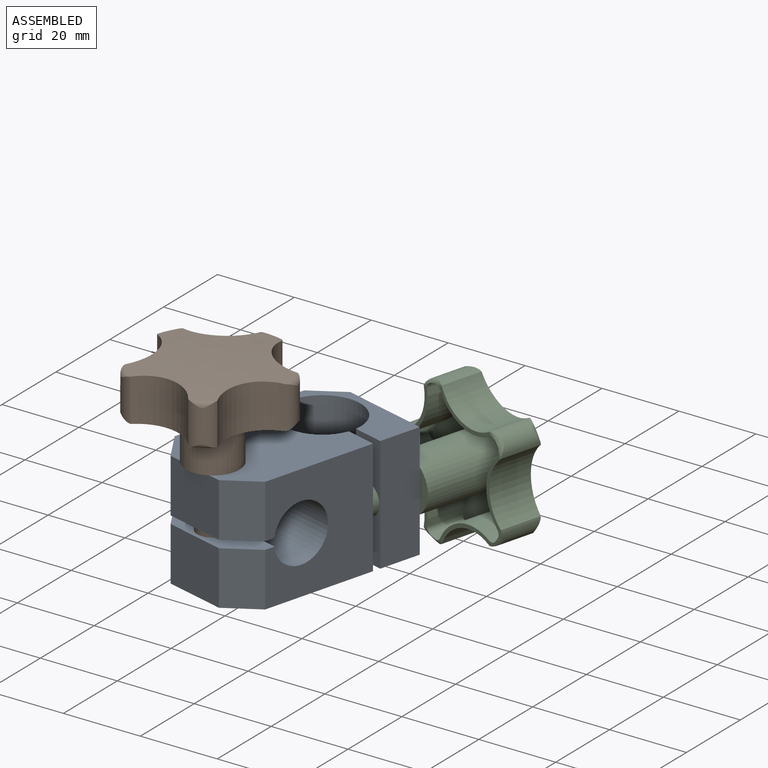
[diagram: assembled view]
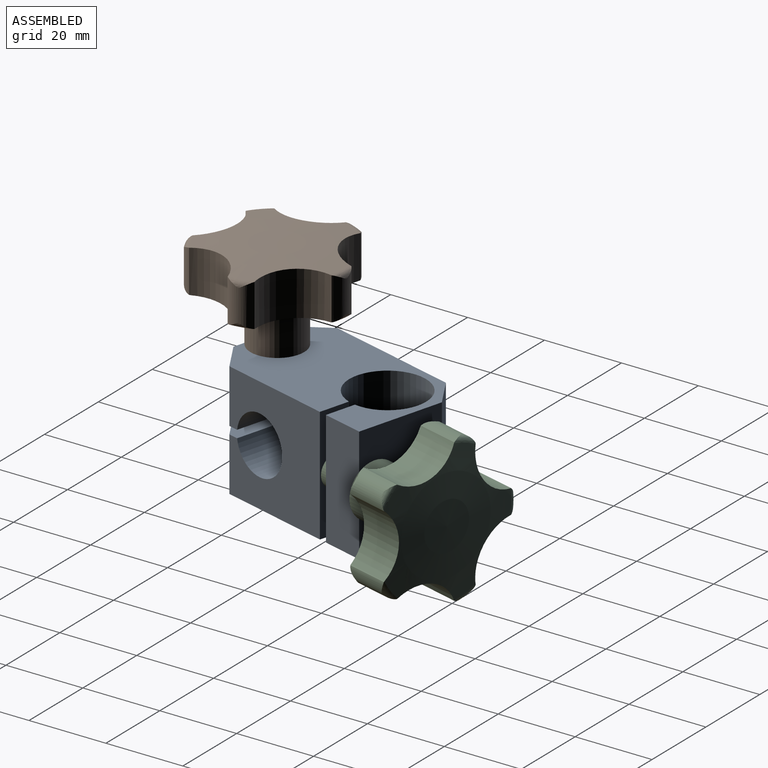
[diagram: assembled view, second angle]
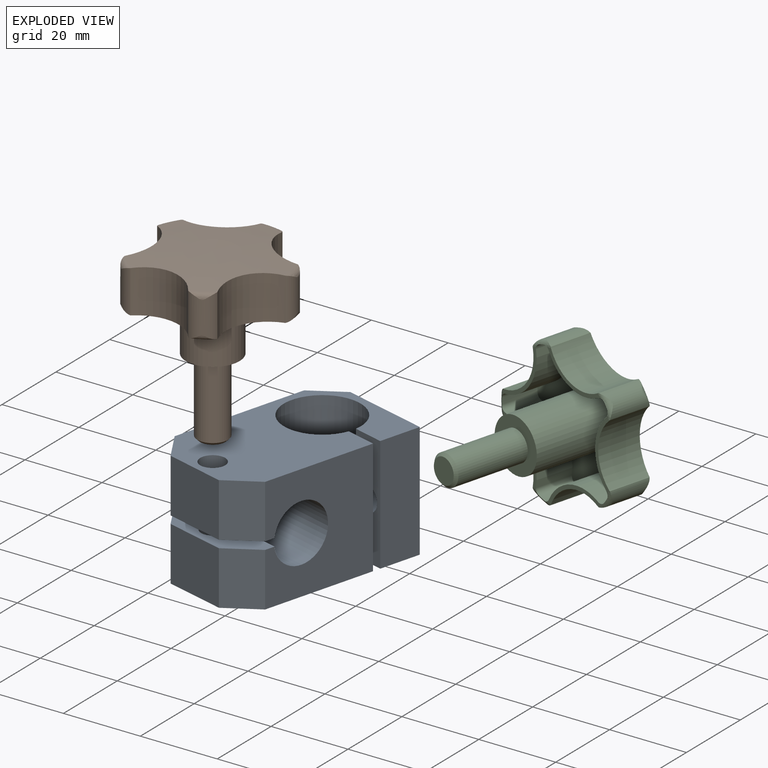
[diagram: exploded view]
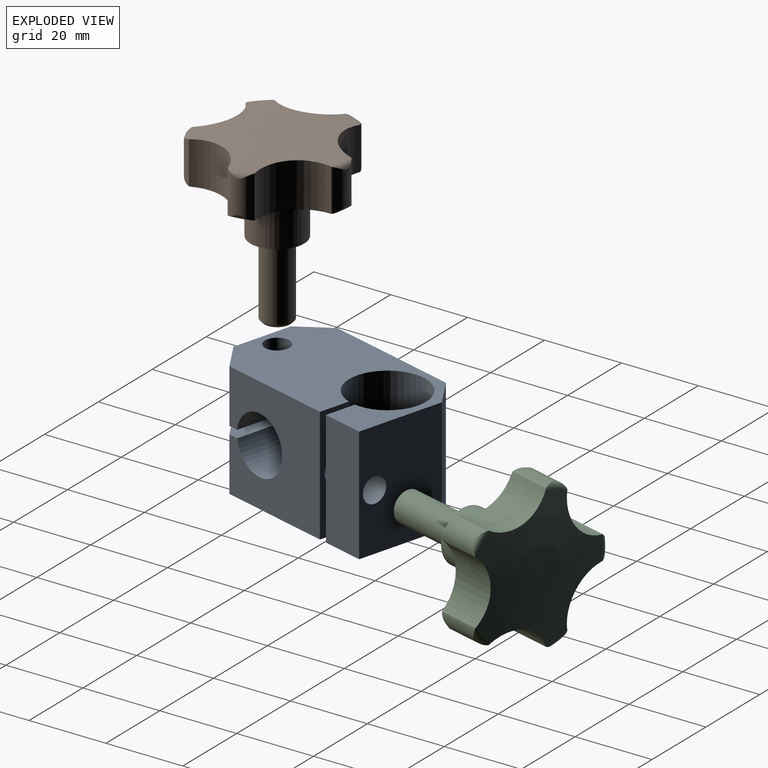
[diagram: exploded view, second angle]
ASSEMBLY  parts=3 mates=2
PART A: 24 faces, bbox 30x50x30 mm
  f0: plane 16x14mm, normal (0,-1,0), area 224mm2, adj f3,f16,f18,f20
  f1: plane 36x30mm, normal (-1,0,0), area 898.2mm2, adj f3,f5,f14,f15,f16,f19,f20,f21
  f2: plane 30x30mm, normal (1,0,0), area 718.2mm2, adj f3,f5,f8,f14,f15,f16,f17,f18
  f3: plane 50x30mm, normal (0,0,-1), area 1068mm2, adj f0,f1,f2,f4,f7,f8,f9,f10
  f4: plane 30x11mm, normal (1,0,0), area 330mm2, adj f3,f5,f7,f9
  f5: plane 50x30mm, normal (0,0,1), area 1063.1mm2, adj f1,f2,f4,f6,f7,f8,f9,f10
  f6: plane 16x14mm, normal (0,-1,0), area 224mm2, adj f5,f14,f17,f19
  f7: plane 30x23mm, normal (0,1,0), area 656.8mm2, adj f3,f4,f5,f11,f21
  f8: plane 30x8.05mm, normal (0,1,0), area 213.2mm2, adj f2,f3,f5,f10,f12
  f9: plane 30x8.05mm, normal (0,-1,0), area 208.3mm2, adj f3,f4,f5,f10,f11
  f10: cylinder r=10mm len=30mm, axis (0,0,1), area 1824.9mm2, adj f3,f5,f8,f9
  f11: cylinder r=3.25mm len=11mm, axis (0,1,0), area 224.6mm2, adj f7,f9
  f12: cylinder r=3mm len=9.25mm, axis (0,1,0), area 174.4mm2, adj f8,f13
  f13: cone r=0mm half-angle=59deg, axis (0,1,0), area 33mm2, adj f12
  f14: plane 30x9.57mm, normal (0,0,-1), area 204.8mm2, adj f1,f2,f6,f15,f17,f19,f23
  f15: cylinder r=7.5mm len=30mm, axis (-1,0,0), area 1353.5mm2, adj f1,f2,f14,f16
  f16: plane 30x9.57mm, normal (0,0,1), area 209.7mm2, adj f0,f1,f2,f15,f18,f20,f22
  f17: plane 14x7mm, normal (0.71,-0.71,0), area 138.6mm2, adj f2,f5,f6,f14
  f18: plane 14x7mm, normal (0.71,-0.71,0), area 138.6mm2, adj f0,f2,f3,f16
  f19: plane 14x7mm, normal (-0.71,-0.71,0), area 138.6mm2, adj f1,f5,f6,f14
  f20: plane 14x7mm, normal (-0.71,-0.71,0), area 138.6mm2, adj f0,f1,f3,f16
  f21: plane 30x7mm, normal (-0.71,0.71,0), area 297mm2, adj f1,f3,f5,f7
  f22: cylinder r=3mm len=14mm, axis (0,0,1), area 263.9mm2, adj f3,f16
  f23: cylinder r=3.25mm len=14mm, axis (0,0,1), area 285.9mm2, adj f5,f14
PART B: 52 faces, bbox 40.2x44x38.9 mm
  f0: cylinder r=12mm len=16.36mm, axis (0,-1,0), area 191.7mm2, adj f1,f19,f21,f23
  f1: cylinder r=1.5mm len=10mm, axis (0,-1,0), area 20.7mm2, adj f0,f2,f21,f23,f32
  f2: cylinder r=19mm len=9.91mm, axis (0,-1,0), area 16.1mm2, adj f1,f3,f21,f32
  f3: cylinder r=1.5mm len=10mm, axis (0,-1,0), area 20.7mm2, adj f2,f4,f21,f31,f32
  f4: cylinder r=12mm len=17.2mm, axis (0,-1,0), area 191.7mm2, adj f3,f5,f21,f31
  f5: cylinder r=1.5mm len=10mm, axis (0,-1,0), area 20.7mm2, adj f4,f6,f21,f30,f31
  f6: cylinder r=19mm len=9.91mm, axis (0,-1,0), area 16.1mm2, adj f5,f7,f21,f30
  f7: cylinder r=1.5mm len=10mm, axis (0,-1,0), area 20.7mm2, adj f6,f8,f21,f29,f30
  f8: cylinder r=12mm len=16.36mm, axis (0,-1,0), area 191.7mm2, adj f7,f9,f21,f29
  f9: cylinder r=1.5mm len=10mm, axis (0,-1,0), area 20.7mm2, adj f8,f10,f21,f28,f29
  f10: cylinder r=19mm len=9.91mm, axis (0,-1,0), area 16.1mm2, adj f9,f11,f21,f28
  f11: cylinder r=1.5mm len=10mm, axis (0,-1,0), area 20.7mm2, adj f10,f12,f21,f27,f28
  f12: cylinder r=12mm len=13.91mm, axis (0,-1,0), area 191.7mm2, adj f11,f13,f21,f27
  f13: cylinder r=1.5mm len=10mm, axis (0,-1,0), area 20.7mm2, adj f12,f14,f21,f26,f27
  f14: cylinder r=19mm len=9.91mm, axis (0,-1,0), area 16.1mm2, adj f13,f15,f21,f26
  f15: cylinder r=1.5mm len=10mm, axis (0,-1,0), area 20.7mm2, adj f14,f16,f21,f25,f26
  f16: cylinder r=12mm len=13.91mm, axis (0,-1,0), area 191.7mm2, adj f15,f17,f21,f25
  f17: cylinder r=1.5mm len=10mm, axis (0,-1,0), area 20.7mm2, adj f16,f18,f21,f24,f25
  f18: cylinder r=19mm len=9.91mm, axis (0,-1,0), area 16.1mm2, adj f17,f19,f21,f24
  f19: cylinder r=1.5mm len=10mm, axis (0,-1,0), area 20.7mm2, adj f0,f18,f21,f23,f24
  f20: cylinder r=7mm len=22mm, axis (0,-1,0), area 967.6mm2, adj f21,f22
  f21: plane 36.72x35.08mm, normal (0,-1,0), area 524.2mm2, adj f0,f1,f2,f3,f4,f5,f6,f7
  f22: plane 14x14mm, normal (0,-1,0), area 103.7mm2, adj f20,f51
  f23: plane 17.59x7.49mm, normal (0,-1,0), area 19.5mm2, adj f0,f1,f19,f24,f32,f35
  f24: torus R=18.5mm, axis (0,1,0), area 7.4mm2, adj f17,f18,f19,f23,f25,f34,f35,f47
  f25: plane 14.97x10.98mm, normal (0,-1,0), area 19.5mm2, adj f15,f16,f17,f24,f26,f34
  f26: torus R=18.5mm, axis (0,1,0), area 7.4mm2, adj f13,f14,f15,f25,f27,f33,f34,f46
  f27: plane 14.97x10.98mm, normal (0,-1,0), area 19.5mm2, adj f11,f12,f13,f26,f28,f33
  f28: torus R=18.5mm, axis (0,1,0), area 7.4mm2, adj f9,f10,f11,f27,f29,f33,f37,f45
  f29: plane 17.59x7.49mm, normal (0,-1,0), area 19.5mm2, adj f7,f8,f9,f28,f30,f37
  f30: torus R=18.5mm, axis (0,1,0), area 7.4mm2, adj f5,f6,f7,f29,f31,f36,f37,f48
  f31: plane 18.5x4.61mm, normal (0,-1,0), area 19.5mm2, adj f3,f4,f5,f30,f32,f36
  f32: torus R=18.5mm, axis (0,1,0), area 7.4mm2, adj f1,f2,f3,f23,f31,f35,f36,f44
  f33: cylinder r=11mm len=13.53mm, axis (0,-1,0), area 216.9mm2, adj f26,f27,f28,f40,f41,f42,f45,f46
  f34: cylinder r=11mm len=13.53mm, axis (0,-1,0), area 216.9mm2, adj f24,f25,f26,f39,f40,f42,f46,f47
  f35: cylinder r=11mm len=15.9mm, axis (0,-1,0), area 216.9mm2, adj f23,f24,f32,f39,f42,f43,f44,f47
  f36: cylinder r=11mm len=16.72mm, axis (0,-1,0), area 216.9mm2, adj f30,f31,f32,f38,f42,f43,f44,f48
  f37: cylinder r=11mm len=15.9mm, axis (0,-1,0), area 216.9mm2, adj f28,f29,f30,f38,f41,f42,f45,f48
  f38: torus R=18.5mm, axis (0,1,0), area 8.2mm2, adj f36,f37,f42,f48
  f39: torus R=18.5mm, axis (0,1,0), area 8.2mm2, adj f34,f35,f42,f47
  f40: torus R=18.5mm, axis (0,1,0), area 8.2mm2, adj f33,f34,f42,f46
  f41: torus R=18.5mm, axis (0,1,0), area 8.2mm2, adj f33,f37,f42,f45
  f42: sphere r=200.5mm, area 773.7mm2, adj f33,f34,f35,f36,f37,f38,f39,f40
  f43: torus R=18.5mm, axis (0,1,0), area 8.2mm2, adj f35,f36,f42,f44
  f44: cylinder r=4.12mm len=11.07mm, axis (0,-1,0), area 70.3mm2, adj f32,f35,f36,f43
  f45: cylinder r=4.12mm len=11.07mm, axis (0,-1,0), area 70.3mm2, adj f28,f33,f37,f41
  f46: cylinder r=4.12mm len=11.07mm, axis (0,-1,0), area 70.3mm2, adj f26,f33,f34,f40
  f47: cylinder r=4.12mm len=11.07mm, axis (0,-1,0), area 70.3mm2, adj f24,f34,f35,f39
  f48: cylinder r=4.12mm len=11.07mm, axis (0,-1,0), area 70.3mm2, adj f30,f36,f37,f38
  f49: plane 6.59x6.59mm, normal (0,-1,0), area 34.1mm2, adj f50
  f50: cone r=3.29mm half-angle=45deg, axis (0,1,0), area 22.9mm2, adj f49,f51
  f51: cylinder r=4mm len=19.29mm, axis (0,1,0), area 484.9mm2, adj f22,f50
PART C: same geometry as B
PLACE A rot(axis=(0,0,-1),15deg) t=(-30.75,42.34,-28.66)mm fixed
PLACE B rot(axis=(0.41,-0.65,-0.65),135.7deg) t=(-42.4,-1.13,-13.66)mm
PLACE C rot(axis=(-0.13,-0.98,-0.13),91deg) t=(-20.42,39.57,-28.66)mm
MATE revolute A.f22 <-> B.f20  axis (0,0,1) through (-42.4,-1.13,-13.66)mm
MATE revolute C.f20 <-> A.f11  axis (-0.26,-0.97,0) through (-20.42,39.57,-28.66)mm
